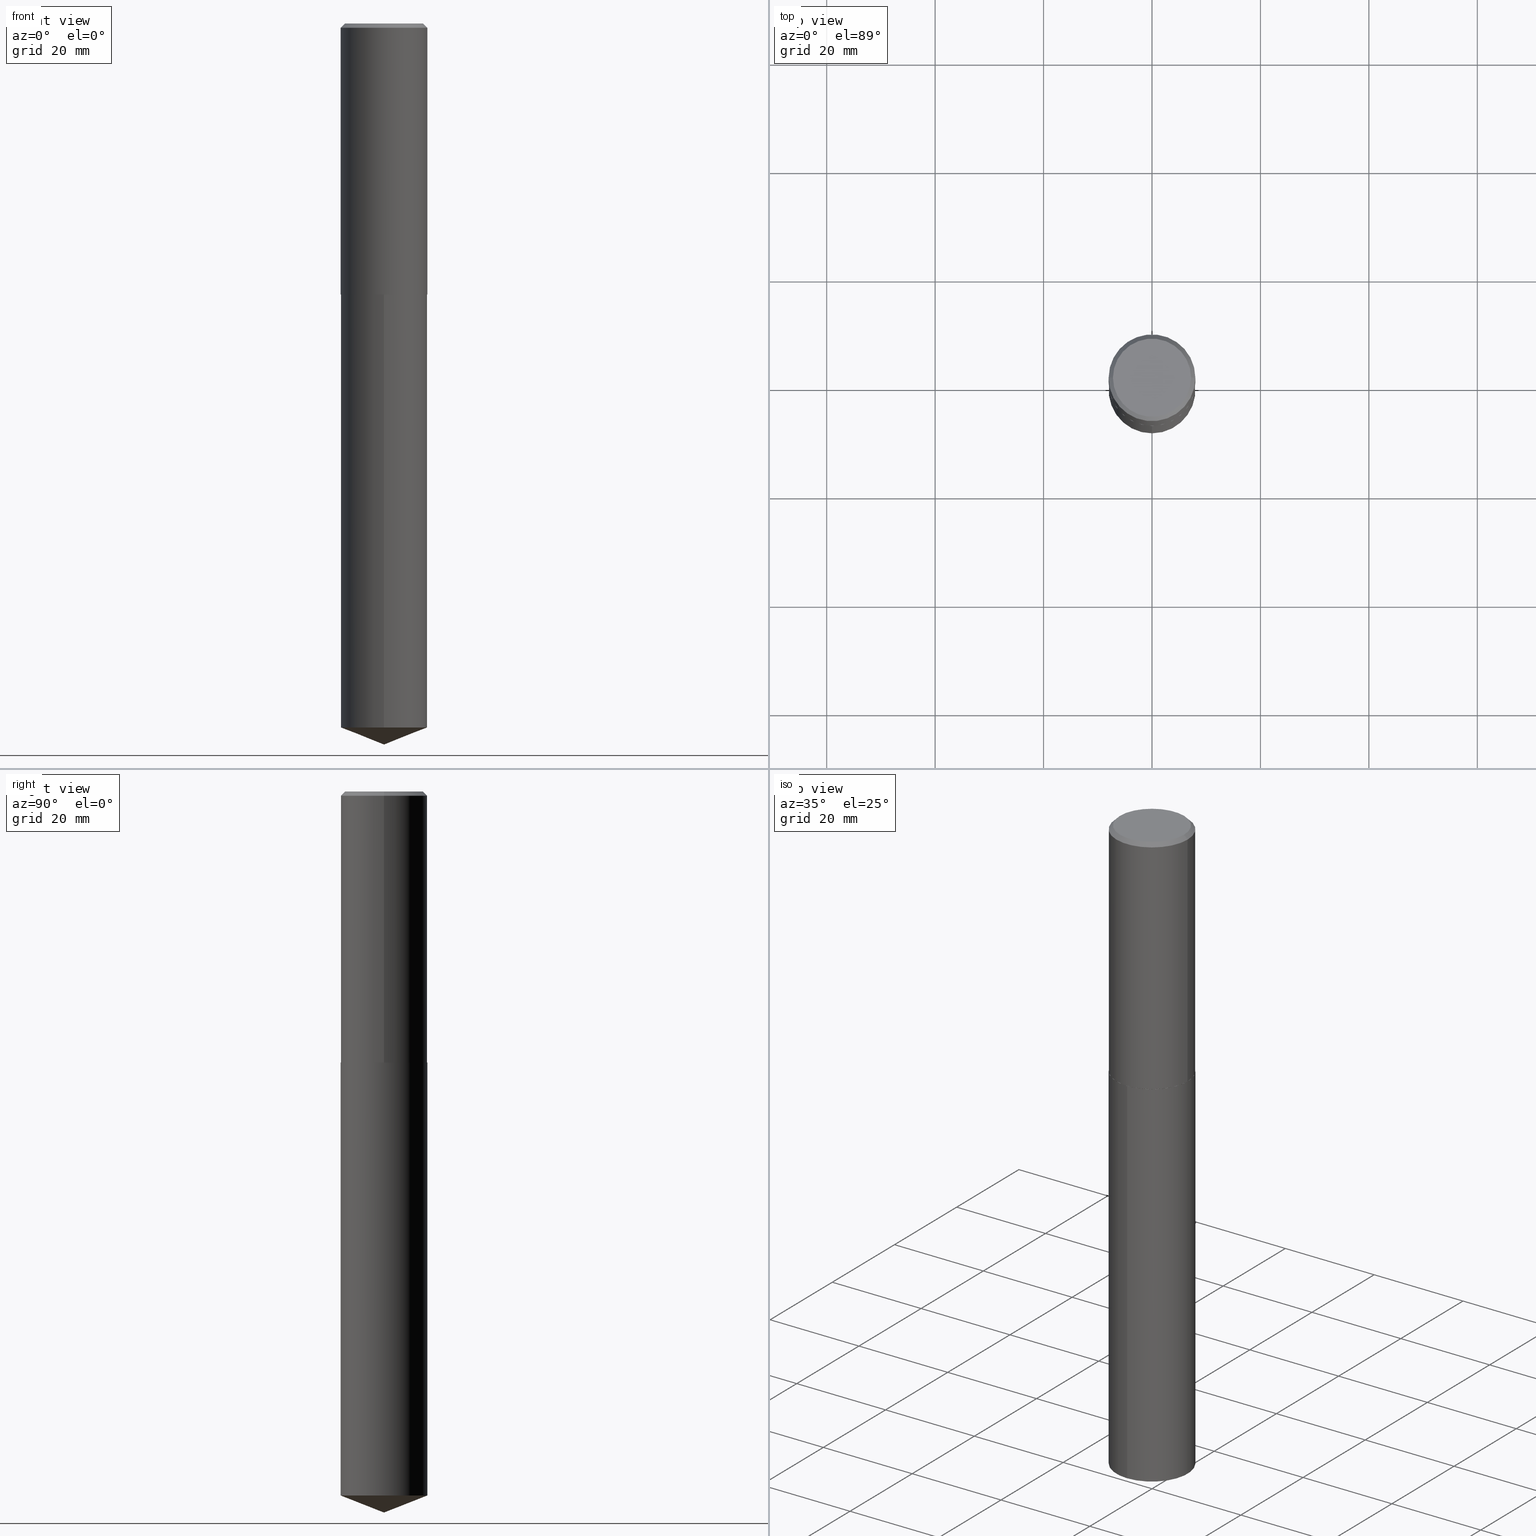
[diagram: canonical four-view strip — front | top / right | iso, engineering-drawing reading convention]
A machine part, canonical four-view strip (front | top / right | iso — engineering-drawing reading convention). The complete STEP part file that produces these views, byte-faithful:
ISO-10303-21;
HEADER;
FILE_DESCRIPTION (( 'STEP AP203' ),
    '1' );
FILE_NAME ('66605.STEP',
    '2024-04-23T12:51:02',
    ( '' ),
    ( '' ),
    'SwSTEP 2.0',
    'SolidWorks 2023',
    '' );
FILE_SCHEMA (( 'CONFIG_CONTROL_DESIGN' ));
ENDSEC;

DATA;
#1 = DIRECTION ( 'NONE',  ( -2.445468806185136597E-29, 3.491481338843145583E-15, 1.000000000000000000 ) ) ;
#2 =( CONVERSION_BASED_UNIT ( 'INCH', #55 ) LENGTH_UNIT ( ) NAMED_UNIT ( #104 ) );
#3 = ORIENTED_EDGE ( 'NONE', *, *, #247, .T. ) ;
#4 = CONICAL_SURFACE ( 'NONE', #216, 99.94676754583952061, 1.195550537616117959 ) ;
#5 = EDGE_CURVE ( 'NONE', #67, #201, #101, .T. ) ;
#6 = ORIENTED_EDGE ( 'NONE', *, *, #146, .F. ) ;
#7 = ADVANCED_FACE ( 'NONE', ( #156 ), #90, .F. ) ;
#8 = CARTESIAN_POINT ( 'NONE',  ( 3.619329321116390709E-29, -8.582283166352408660E-15, -1.968299999999999494 ) ) ;
#9 = CARTESIAN_POINT ( 'NONE',  ( 4.812193516811110904E-29, -6.870536978575539236E-15, -1.967799999999999327 ) ) ;
#10 = AXIS2_PLACEMENT_3D ( 'NONE', #294, #244, #154 ) ;
#11 = CONICAL_SURFACE ( 'NONE', #178, 0.3149500000000001743, 0.7853981633969019382 ) ;
#12 = CARTESIAN_POINT ( 'NONE',  ( 0.3144500000000002293, -9.068075333243411547E-15, -1.968299999999999939 ) ) ;
#13 = VECTOR ( 'NONE', #162, 39.37007874015748854 ) ;
#14 = DIRECTION ( 'NONE',  ( -2.445468806185136597E-29, 3.491481338843145583E-15, 1.000000000000000000 ) ) ;
#15 = LINE ( 'NONE', #310, #13 ) ;
#16 = DIRECTION ( 'NONE',  ( 1.000000000000000000, -6.982962677686269866E-15, 0.000000000000000000 ) ) ;
#17 = AXIS2_PLACEMENT_3D ( 'NONE', #8, #245, #39 ) ;
#18 = CARTESIAN_POINT ( 'NONE',  ( -5.892338936576605744E-47, 8.412698369802303245E-33, 2.409492577322419881E-18 ) ) ;
#19 = ORIENTED_EDGE ( 'NONE', *, *, #195, .T. ) ;
#20 = EDGE_CURVE ( 'NONE', #201, #67, #378, .T. ) ;
#21 = FACE_OUTER_BOUND ( 'NONE', #303, .T. ) ;
#22 = CALENDAR_DATE ( 2024, 23, 4 ) ;
#23 = CARTESIAN_POINT ( 'NONE',  ( 0.3149500000000000632, -2.308392887176139760E-15, -0.03125000000000023592 ) ) ;
#24 = CARTESIAN_POINT ( 'NONE',  ( 4.812193516811110904E-29, -6.870536978575539236E-15, -1.967799999999999327 ) ) ;
#25 = AXIS2_PLACEMENT_3D ( 'NONE', #192, #307, #45 ) ;
#26 = PRODUCT_DEFINITION_FORMATION_WITH_SPECIFIED_SOURCE ( 'ANY', '', #260, .NOT_KNOWN. ) ;
#27 = DATE_AND_TIME ( #299, #372 ) ;
#28 = VERTEX_POINT ( 'NONE', #367 ) ;
#29 = CARTESIAN_POINT ( 'NONE',  ( 0.000000000000000000, 0.000000000000000000, 0.000000000000000000 ) ) ;
#30 = CARTESIAN_POINT ( 'NONE',  ( 7.642090019328610544E-31, -1.091087918388491376E-16, -0.03125000000000023592 ) ) ;
#31 = APPLICATION_PROTOCOL_DEFINITION ( 'international standard', 'config_control_design', 1994, #91 ) ;
#32 = DIRECTION ( 'NONE',  ( -6.982962677686266711E-15, -1.000000000000000000, 3.498627837350020000E-15 ) ) ;
#33 = VECTOR ( 'NONE', #388, 39.37007874015748854 ) ;
#34 = ADVANCED_FACE ( 'NONE', ( #60 ), #11, .T. ) ;
#35 = DIRECTION ( 'NONE',  ( -2.445468806185136597E-29, 3.491481338843145583E-15, 1.000000000000000000 ) ) ;
#36 = CARTESIAN_POINT ( 'NONE',  ( -2.199284095337241356E-15, -0.3149500000000068911, -1.968299999999998162 ) ) ;
#37 = PRODUCT_DEFINITION ( 'UNKNOWN', '', #26, #338 ) ;
#38 = ADVANCED_BREP_SHAPE_REPRESENTATION ( '66605', ( #191, #179, #65 ), #110 ) ;
#39 = DIRECTION ( 'NONE',  ( 1.000000000000000000, -6.982962677686265922E-15, 4.876176775795935793E-29 ) ) ;
#40 = DIRECTION ( 'NONE',  ( -2.445468806185136597E-29, 3.491481338843145583E-15, 1.000000000000000000 ) ) ;
#41 = CC_DESIGN_PERSON_AND_ORGANIZATION_ASSIGNMENT ( #173, #387, ( #260 ) ) ;
#42 = DIRECTION ( 'NONE',  ( 2.445468806185136597E-29, -3.491481338843145583E-15, -1.000000000000000000 ) ) ;
#43 = VECTOR ( 'NONE', #148, 39.37007874015748143 ) ;
#44 = CC_DESIGN_APPROVAL ( #335, ( #37 ) ) ;
#45 = DIRECTION ( 'NONE',  ( 1.000000000000000000, -6.982962677686267499E-15, 4.876309930827607477E-29 ) ) ;
#46 = ORIENTED_EDGE ( 'NONE', *, *, #315, .F. ) ;
#47 = DIRECTION ( 'NONE',  ( -1.000000000000000000, 6.982962677686266711E-15, 0.000000000000000000 ) ) ;
#48 = EDGE_LOOP ( 'NONE', ( #147, #286, #204 ) ) ;
#49 = CARTESIAN_POINT ( 'NONE',  ( 0.3149500000000001743, -2.199284095337290660E-15, 1.535751875536930690E-29 ) ) ;
#50 = ORIENTED_EDGE ( 'NONE', *, *, #20, .F. ) ;
#51 = CIRCLE ( 'NONE', #297, 0.3149500000000001743 ) ;
#52 = FACE_OUTER_BOUND ( 'NONE', #109, .T. ) ;
#53 = CONICAL_SURFACE ( 'NONE', #208, 0.3149500000000000632, 0.7853981633974456145 ) ;
#54 = ORIENTED_EDGE ( 'NONE', *, *, #111, .T. ) ;
#55 = LENGTH_MEASURE_WITH_UNIT ( LENGTH_MEASURE( 0.02539999999999999897 ), #228 );
#56 = ORIENTED_EDGE ( 'NONE', *, *, #20, .T. ) ;
#57 = EDGE_LOOP ( 'NONE', ( #316, #46 ) ) ;
#58 = PERSON_AND_ORGANIZATION ( #306, #64 ) ;
#59 = CC_DESIGN_PERSON_AND_ORGANIZATION_ASSIGNMENT ( #149, #267, ( #26 ) ) ;
#60 = FACE_OUTER_BOUND ( 'NONE', #152, .T. ) ;
#61 = COORDINATED_UNIVERSAL_TIME_OFFSET ( 5, 0, .BEHIND. ) ;
#62 = VECTOR ( 'NONE', #332, 39.37007874015748854 ) ;
#63 = ORIENTED_EDGE ( 'NONE', *, *, #243, .T. ) ;
#64 = ORGANIZATION ( 'UNSPECIFIED', 'UNSPECIFIED', '' ) ;
#65 = AXIS2_PLACEMENT_3D ( 'NONE', #29, #261, #239 ) ;
#66 = APPROVAL_ROLE ( '' ) ;
#67 = VERTEX_POINT ( 'NONE', #23 ) ;
#68 = VERTEX_POINT ( 'NONE', #151 ) ;
#69 = DIRECTION ( 'NONE',  ( 2.444819801250085541E-29, -3.492410750849204966E-15, -1.000000000000000000 ) ) ;
#70 = EDGE_CURVE ( 'NONE', #232, #67, #129, .T. ) ;
#71 = FACE_OUTER_BOUND ( 'NONE', #57, .T. ) ;
#72 = AXIS2_PLACEMENT_3D ( 'NONE', #135, #251, #77 ) ;
#73 = LINE ( 'NONE', #36, #289 ) ;
#74 = EDGE_CURVE ( 'NONE', #172, #382, #276, .T. ) ;
#75 = CARTESIAN_POINT ( 'NONE',  ( 1.280365375539167824E-28, -1.828260396814338292E-14, -5.235999999999999766 ) ) ;
#76 = CIRCLE ( 'NONE', #150, 0.3144500000000002293 ) ;
#77 = DIRECTION ( 'NONE',  ( -6.982962677686265922E-15, -1.000000000000000000, 3.469564049740292770E-15 ) ) ;
#78 = PRODUCT_RELATED_PRODUCT_CATEGORY ( 'detail', '', ( #260 ) ) ;
#79 = DIRECTION ( 'NONE',  ( -6.982962677686265922E-15, -1.000000000000000000, 3.469564049740292770E-15 ) ) ;
#80 = DIRECTION ( 'NONE',  ( -2.445468806185136597E-29, 3.491481338843145583E-15, 1.000000000000000000 ) ) ;
#81 = ORIENTED_EDGE ( 'NONE', *, *, #390, .T. ) ;
#82 = CONICAL_SURFACE ( 'NONE', #198, 0.3149500000000001743, 0.7853981633969019382 ) ;
#83 = CIRCLE ( 'NONE', #298, 0.3149500000000000077 ) ;
#84 = CARTESIAN_POINT ( 'NONE',  ( 4.813416251214202584E-29, -6.872282719244960739E-15, -1.968299999999999272 ) ) ;
#85 = LINE ( 'NONE', #49, #225 ) ;
#86 = ADVANCED_FACE ( 'NONE', ( #322 ), #174, .T. ) ;
#87 = EDGE_LOOP ( 'NONE', ( #354, #256, #81, #50 ) ) ;
#88 = PERSON_AND_ORGANIZATION ( #306, #64 ) ;
#89 = COORDINATED_UNIVERSAL_TIME_OFFSET ( 5, 0, .BEHIND. ) ;
#90 = PLANE ( 'NONE',  #270 ) ;
#91 = APPLICATION_CONTEXT ( 'configuration controlled 3d designs of mechanical parts and assemblies' ) ;
#92 = APPROVAL_DATE_TIME ( #155, #275 ) ;
#93 = CARTESIAN_POINT ( 'NONE',  ( -2.199284095337164048E-15, -0.3149500000000177713, -5.111937895705072954 ) ) ;
#94 = CLOSED_SHELL ( 'NONE', ( #86, #269, #131, #375, #7 ) ) ;
#95 = CARTESIAN_POINT ( 'NONE',  ( -8.345039416495294866E-28, 1.192120529241108051E-13, 34.13407874015748433 ) ) ;
#96 = VECTOR ( 'NONE', #226, 39.37007874015748854 ) ;
#97 = EDGE_LOOP ( 'NONE', ( #175, #19 ) ) ;
#98 = DATE_TIME_ROLE ( 'creation_date' ) ;
#99 = LINE ( 'NONE', #125, #43 ) ;
#100 = LINE ( 'NONE', #75, #241 ) ;
#101 = CIRCLE ( 'NONE', #371, 0.3149500000000000632 ) ;
#102 = CIRCLE ( 'NONE', #170, 0.3144500000000002293 ) ;
#103 = EDGE_CURVE ( 'NONE', #141, #350, #99, .T. ) ;
#104 = DIMENSIONAL_EXPONENTS ( 1.000000000000000000, 0.000000000000000000, 0.000000000000000000, 0.000000000000000000, 0.000000000000000000, 0.000000000000000000, 0.000000000000000000 ) ;
#105 = CARTESIAN_POINT ( 'NONE',  ( 7.642090019328610544E-31, -1.091087918388491376E-16, -0.03125000000000023592 ) ) ;
#106 = DIRECTION ( 'NONE',  ( 1.000000000000000000, -6.982962677686267499E-15, 4.876309930827607477E-29 ) ) ;
#107 = ORIENTED_EDGE ( 'NONE', *, *, #121, .F. ) ;
#108 = FACE_OUTER_BOUND ( 'NONE', #235, .T. ) ;
#109 = EDGE_LOOP ( 'NONE', ( #113, #54, #197, #220 ) ) ;
#110 =( GEOMETRIC_REPRESENTATION_CONTEXT ( 3 ) GLOBAL_UNCERTAINTY_ASSIGNED_CONTEXT ( ( #249 ) ) GLOBAL_UNIT_ASSIGNED_CONTEXT ( ( #2, #124, #180 ) ) REPRESENTATION_CONTEXT ( 'NONE', 'WORKASPACE' ) );
#111 = EDGE_CURVE ( 'NONE', #382, #201, #238, .T. ) ;
#112 = CARTESIAN_POINT ( 'NONE',  ( 1.280107647934544831E-28, -1.828626269144643580E-14, -5.235999999999999766 ) ) ;
#113 = ORIENTED_EDGE ( 'NONE', *, *, #74, .T. ) ;
#114 = ORIENTED_EDGE ( 'NONE', *, *, #368, .T. ) ;
#115 = VERTEX_POINT ( 'NONE', #93 ) ;
#116 = COORDINATED_UNIVERSAL_TIME_OFFSET ( 5, 0, .BEHIND. ) ;
#117 = CIRCLE ( 'NONE', #364, 0.3149500000000000077 ) ;
#118 = PERSON_AND_ORGANIZATION_ROLE ( 'creator' ) ;
#119 = CC_DESIGN_APPROVAL ( #275, ( #26 ) ) ;
#120 = EDGE_LOOP ( 'NONE', ( #139, #302, #157, #56 ) ) ;
#121 = EDGE_CURVE ( 'NONE', #227, #172, #331, .T. ) ;
#122 = CALENDAR_DATE ( 2024, 23, 4 ) ;
#123 = DIRECTION ( 'NONE',  ( 1.000000000000000000, -6.982962677686265922E-15, 0.000000000000000000 ) ) ;
#124 =( NAMED_UNIT ( * ) PLANE_ANGLE_UNIT ( ) SI_UNIT ( $, .RADIAN. ) );
#125 = CARTESIAN_POINT ( 'NONE',  ( 2.237854346276483316E-15, 0.3149499999999931243, -1.968300000000000383 ) ) ;
#126 = PERSON_AND_ORGANIZATION ( #306, #64 ) ;
#127 = ORIENTED_EDGE ( 'NONE', *, *, #355, .T. ) ;
#128 = APPROVAL_PERSON_ORGANIZATION ( #231, #275, #295 ) ;
#129 = LINE ( 'NONE', #240, #33 ) ;
#130 = CARTESIAN_POINT ( 'NONE',  ( 2.237854346276560230E-15, 0.3149499999999821886, -5.111937895705075618 ) ) ;
#131 = ADVANCED_FACE ( 'NONE', ( #186 ), #224, .T. ) ;
#132 = APPLICATION_CONTEXT ( 'configuration controlled 3d designs of mechanical parts and assemblies' ) ;
#133 = APPROVAL_PERSON_ORGANIZATION ( #88, #218, #358 ) ;
#134 = CARTESIAN_POINT ( 'NONE',  ( -0.3149500000000000632, -1.251968538930757395E-15, -0.03125000000000023592 ) ) ;
#135 = CARTESIAN_POINT ( 'NONE',  ( 1.249904442659412595E-28, -1.785115750298233678E-14, -5.111937895705073842 ) ) ;
#136 = CARTESIAN_POINT ( 'NONE',  ( 0.2837000000000000077, -2.108072959102388916E-15, 4.818985154659137865E-18 ) ) ;
#137 = AXIS2_PLACEMENT_3D ( 'NONE', #257, #165, #219 ) ;
#138 = DIRECTION ( 'NONE',  ( -2.445468806185136597E-29, 3.491481338843145583E-15, 1.000000000000000000 ) ) ;
#139 = ORIENTED_EDGE ( 'NONE', *, *, #70, .F. ) ;
#140 = CARTESIAN_POINT ( 'NONE',  ( -8.345039416495294866E-28, 1.192120529241108051E-13, 34.13407874015748433 ) ) ;
#141 = VERTEX_POINT ( 'NONE', #130 ) ;
#142 = CARTESIAN_POINT ( 'NONE',  ( 7.642090019328610544E-31, -1.091087918388491376E-16, -0.03125000000000023592 ) ) ;
#143 = AXIS2_PLACEMENT_3D ( 'NONE', #177, #296, #242 ) ;
#144 = DIRECTION ( 'NONE',  ( -1.000000000000000000, 6.982962677686266711E-15, 0.000000000000000000 ) ) ;
#145 = DIRECTION ( 'NONE',  ( -2.445468806185136597E-29, 3.491481338843145583E-15, 1.000000000000000000 ) ) ;
#146 = EDGE_CURVE ( 'NONE', #300, #201, #212, .T. ) ;
#147 = ORIENTED_EDGE ( 'NONE', *, *, #243, .F. ) ;
#148 = DIRECTION ( 'NONE',  ( -2.444819801250085822E-29, 3.492410750849204966E-15, 1.000000000000000000 ) ) ;
#149 = PERSON_AND_ORGANIZATION ( #306, #64 ) ;
#150 = AXIS2_PLACEMENT_3D ( 'NONE', #217, #14, #16 ) ;
#151 = CARTESIAN_POINT ( 'NONE',  ( -2.199284095337241356E-15, -0.3149500000000068911, -1.968299999999998162 ) ) ;
#152 = EDGE_LOOP ( 'NONE', ( #114, #127, #166, #107 ) ) ;
#153 = APPROVAL_DATE_TIME ( #27, #218 ) ;
#154 = DIRECTION ( 'NONE',  ( -6.982962677686265922E-15, -1.000000000000000000, 3.469564049740292770E-15 ) ) ;
#155 = DATE_AND_TIME ( #203, #357 ) ;
#156 = FACE_OUTER_BOUND ( 'NONE', #97, .T. ) ;
#157 = ORIENTED_EDGE ( 'NONE', *, *, #146, .T. ) ;
#158 = LOCAL_TIME ( 8, 51, 2.000000000000000000, #263 ) ;
#159 = PLANE ( 'NONE',  #17 ) ;
#160 = CARTESIAN_POINT ( 'NONE',  ( -0.3149500000000000632, 2.090175303498441165E-15, -0.03125000000000023592 ) ) ;
#161 = CC_DESIGN_APPROVAL ( #218, ( #328 ) ) ;
#162 = DIRECTION ( 'NONE',  ( -0.7071067811861611041, 7.493145998868957876E-15, 0.7071067811869338193 ) ) ;
#163 = DIRECTION ( 'NONE',  ( -2.444819801250086102E-29, 3.492410750849204966E-15, 1.000000000000000000 ) ) ;
#164 = ORIENTED_EDGE ( 'NONE', *, *, #250, .F. ) ;
#165 = DIRECTION ( 'NONE',  ( -2.444819801250086102E-29, 3.492410750849204966E-15, 1.000000000000000000 ) ) ;
#166 = ORIENTED_EDGE ( 'NONE', *, *, #74, .F. ) ;
#167 = DIRECTION ( 'NONE',  ( 2.445468806185136597E-29, -3.491481338843145583E-15, -1.000000000000000000 ) ) ;
#168 = ORIENTED_EDGE ( 'NONE', *, *, #5, .T. ) ;
#169 = VECTOR ( 'NONE', #182, 39.37007874015748854 ) ;
#170 = AXIS2_PLACEMENT_3D ( 'NONE', #343, #80, #281 ) ;
#171 = DIRECTION ( 'NONE',  ( 1.000000000000000000, -6.982962677686265922E-15, 4.876176775795935232E-29 ) ) ;
#172 = VERTEX_POINT ( 'NONE', #279 ) ;
#173 = PERSON_AND_ORGANIZATION ( #306, #64 ) ;
#174 = CYLINDRICAL_SURFACE ( 'NONE', #10, 0.3149500000000000077 ) ;
#175 = ORIENTED_EDGE ( 'NONE', *, *, #333, .T. ) ;
#176 = APPROVAL_STATUS ( 'not_yet_approved' ) ;
#177 = CARTESIAN_POINT ( 'NONE',  ( 7.642090019328610544E-31, -1.091087918388491376E-16, -0.03125000000000023592 ) ) ;
#178 = AXIS2_PLACEMENT_3D ( 'NONE', #24, #366, #327 ) ;
#179 = MANIFOLD_SOLID_BREP ( 'Body-Move/Copy2[2]', #282 ) ;
#180 =( NAMED_UNIT ( * ) SI_UNIT ( $, .STERADIAN. ) SOLID_ANGLE_UNIT ( ) );
#181 = ADVANCED_FACE ( 'NONE', ( #215 ), #214, .T. ) ;
#182 = DIRECTION ( 'NONE',  ( 0.7071067811861611041, -2.468850131078209810E-15, 0.7071067811869338193 ) ) ;
#183 = APPLICATION_PROTOCOL_DEFINITION ( 'international standard', 'config_control_design', 1994, #132 ) ;
#184 = ORIENTED_EDGE ( 'NONE', *, *, #247, .F. ) ;
#185 = DATE_TIME_ROLE ( 'classification_date' ) ;
#186 = FACE_OUTER_BOUND ( 'NONE', #48, .T. ) ;
#187 = EDGE_CURVE ( 'NONE', #141, #115, #233, .T. ) ;
#188 = VECTOR ( 'NONE', #363, 39.37007874015748143 ) ;
#189 = DIRECTION ( 'NONE',  ( -6.982962677686265922E-15, -1.000000000000000000, 3.469564049740292770E-15 ) ) ;
#190 = LOCAL_TIME ( 8, 51, 2.000000000000000000, #361 ) ;
#191 = MANIFOLD_SOLID_BREP ( 'Body-Move/Copy2[1]', #94 ) ;
#192 = CARTESIAN_POINT ( 'NONE',  ( -1.178467787315321149E-46, 1.682539673960460649E-32, 4.818985154644839761E-18 ) ) ;
#193 = LOCAL_TIME ( 8, 51, 2.000000000000000000, #116 ) ;
#194 = CARTESIAN_POINT ( 'NONE',  ( -0.2837000000000000077, 2.035620907579017403E-15, 4.818985154630794339E-18 ) ) ;
#195 = EDGE_CURVE ( 'NONE', #350, #68, #117, .T. ) ;
#196 = CARTESIAN_POINT ( 'NONE',  ( 4.813416251214202584E-29, -6.872282719244960739E-15, -1.968299999999999272 ) ) ;
#197 = ORIENTED_EDGE ( 'NONE', *, *, #5, .F. ) ;
#198 = AXIS2_PLACEMENT_3D ( 'NONE', #9, #40, #304 ) ;
#199 = CARTESIAN_POINT ( 'NONE',  ( 2.237854346276560625E-15, 0.3149499999999931243, -1.968300000000000383 ) ) ;
#200 = ORIENTED_EDGE ( 'NONE', *, *, #355, .F. ) ;
#201 = VERTEX_POINT ( 'NONE', #134 ) ;
#202 = ORIENTED_EDGE ( 'NONE', *, *, #344, .F. ) ;
#203 = CALENDAR_DATE ( 2024, 23, 4 ) ;
#204 = ORIENTED_EDGE ( 'NONE', *, *, #187, .F. ) ;
#205 = ADVANCED_FACE ( 'NONE', ( #308 ), #82, .T. ) ;
#206 = PERSON_AND_ORGANIZATION_ROLE ( 'classification_officer' ) ;
#207 = CARTESIAN_POINT ( 'NONE',  ( 0.3149500000000001743, -9.069821073912830684E-15, -1.967799999999999327 ) ) ;
#208 = AXIS2_PLACEMENT_3D ( 'NONE', #105, #167, #47 ) ;
#209 = DIRECTION ( 'NONE',  ( 6.982962677686265922E-15, 1.000000000000000000, -3.492410750849204966E-15 ) ) ;
#210 = SECURITY_CLASSIFICATION_LEVEL ( 'unclassified' ) ;
#211 = CARTESIAN_POINT ( 'NONE',  ( -0.3149500000000001743, 2.237854346276436774E-15, -1.549218606675783237E-29 ) ) ;
#212 = LINE ( 'NONE', #160, #62 ) ;
#213 = AXIS2_PLACEMENT_3D ( 'NONE', #264, #268, #123 ) ;
#214 = CYLINDRICAL_SURFACE ( 'NONE', #369, 0.3149500000000001743 ) ;
#215 = FACE_OUTER_BOUND ( 'NONE', #87, .T. ) ;
#216 = AXIS2_PLACEMENT_3D ( 'NONE', #140, #163, #353 ) ;
#217 = CARTESIAN_POINT ( 'NONE',  ( 4.813416251214204266E-29, -6.872282719244963106E-15, -1.968299999999999939 ) ) ;
#218 = APPROVAL ( #324, 'UNSPECIFIED' ) ;
#219 = DIRECTION ( 'NONE',  ( -6.982962677686265922E-15, -1.000000000000000000, 3.469564049740292770E-15 ) ) ;
#220 = ORIENTED_EDGE ( 'NONE', *, *, #390, .F. ) ;
#221 = ORIENTED_EDGE ( 'NONE', *, *, #315, .T. ) ;
#222 = DIRECTION ( 'NONE',  ( 1.000000000000000000, -6.982962677686265922E-15, 0.000000000000000000 ) ) ;
#223 = ORIENTED_EDGE ( 'NONE', *, *, #383, .F. ) ;
#224 = CONICAL_SURFACE ( 'NONE', #312, 99.94676754583952061, 1.195550537616117959 ) ;
#225 = VECTOR ( 'NONE', #381, 39.37007874015748143 ) ;
#226 = DIRECTION ( 'NONE',  ( -6.497071151882115892E-15, -0.9304175679820240186, 0.3665012267242985233 ) ) ;
#227 = VERTEX_POINT ( 'NONE', #12 ) ;
#228 =( LENGTH_UNIT ( ) NAMED_UNIT ( * ) SI_UNIT ( $, .METRE. ) );
#229 = ORIENTED_EDGE ( 'NONE', *, *, #333, .F. ) ;
#230 = PRODUCT_DEFINITION_SHAPE ( 'NONE', 'NONE',  #37 ) ;
#231 = PERSON_AND_ORGANIZATION ( #306, #64 ) ;
#232 = VERTEX_POINT ( 'NONE', #136 ) ;
#233 = CIRCLE ( 'NONE', #72, 0.3149500000000000077 ) ;
#234 = DATE_AND_TIME ( #326, #190 ) ;
#235 = EDGE_LOOP ( 'NONE', ( #323, #319, #3, #352 ) ) ;
#236 = ADVANCED_FACE ( 'NONE', ( #71 ), #159, .F. ) ;
#237 = APPROVAL_STATUS ( 'not_yet_approved' ) ;
#238 = LINE ( 'NONE', #211, #188 ) ;
#239 = DIRECTION ( 'NONE',  ( 1.000000000000000000, 0.000000000000000000, 0.000000000000000000 ) ) ;
#240 = CARTESIAN_POINT ( 'NONE',  ( 0.3149500000000000632, -2.269822636236993647E-15, -0.03125000000000023592 ) ) ;
#241 = VECTOR ( 'NONE', #336, 39.37007874015748854 ) ;
#242 = DIRECTION ( 'NONE',  ( 1.000000000000000000, -6.982962677686266711E-15, 0.000000000000000000 ) ) ;
#243 = EDGE_CURVE ( 'NONE', #386, #141, #100, .T. ) ;
#244 = DIRECTION ( 'NONE',  ( -2.444819801250086102E-29, 3.492410750849204966E-15, 1.000000000000000000 ) ) ;
#245 = DIRECTION ( 'NONE',  ( -2.438088387897960049E-29, 3.491481338843145188E-15, 1.000000000000000000 ) ) ;
#246 = AXIS2_PLACEMENT_3D ( 'NONE', #284, #145, #171 ) ;
#247 = EDGE_CURVE ( 'NONE', #115, #68, #73, .T. ) ;
#248 = DIRECTION ( 'NONE',  ( -2.444819801250085822E-29, 3.492410750849204966E-15, 1.000000000000000000 ) ) ;
#249 = UNCERTAINTY_MEASURE_WITH_UNIT (LENGTH_MEASURE( 1.000000000000000082E-05 ), #2, 'distance_accuracy_value', 'NONE');
#250 = EDGE_CURVE ( 'NONE', #232, #300, #334, .T. ) ;
#251 = DIRECTION ( 'NONE',  ( -2.444819801250086102E-29, 3.492410750849204966E-15, 1.000000000000000000 ) ) ;
#252 = DIRECTION ( 'NONE',  ( -2.445468806185136597E-29, 3.491481338843145583E-15, 1.000000000000000000 ) ) ;
#253 = ADVANCED_FACE ( 'NONE', ( #342 ), #318, .F. ) ;
#254 = CYLINDRICAL_SURFACE ( 'NONE', #246, 0.3149500000000001743 ) ;
#255 = CARTESIAN_POINT ( 'NONE',  ( -0.3149500000000001743, -4.632682632299103251E-15, -1.967799999999999327 ) ) ;
#256 = ORIENTED_EDGE ( 'NONE', *, *, #274, .T. ) ;
#257 = CARTESIAN_POINT ( 'NONE',  ( 1.249904442659412595E-28, -1.785115750298233678E-14, -5.111937895705073842 ) ) ;
#258 = ORIENTED_EDGE ( 'NONE', *, *, #250, .T. ) ;
#259 = EDGE_LOOP ( 'NONE', ( #360, #258 ) ) ;
#260 = PRODUCT ( '66605', '66605', '', ( #265 ) ) ;
#261 = DIRECTION ( 'NONE',  ( 0.000000000000000000, 0.000000000000000000, 1.000000000000000000 ) ) ;
#262 = EDGE_LOOP ( 'NONE', ( #200, #221, #348, #266 ) ) ;
#263 = COORDINATED_UNIVERSAL_TIME_OFFSET ( 5, 0, .BEHIND. ) ;
#264 = CARTESIAN_POINT ( 'NONE',  ( 4.812193516811110904E-29, -6.870536978575539236E-15, -1.967799999999999327 ) ) ;
#265 = MECHANICAL_CONTEXT ( 'NONE', #91, 'mechanical' ) ;
#266 = ORIENTED_EDGE ( 'NONE', *, *, #274, .F. ) ;
#267 = PERSON_AND_ORGANIZATION_ROLE ( 'design_supplier' ) ;
#268 = DIRECTION ( 'NONE',  ( -2.445468806185136597E-29, 3.491481338843145583E-15, 1.000000000000000000 ) ) ;
#269 = ADVANCED_FACE ( 'NONE', ( #21 ), #4, .T. ) ;
#270 = AXIS2_PLACEMENT_3D ( 'NONE', #325, #69, #209 ) ;
#271 = AXIS2_PLACEMENT_3D ( 'NONE', #376, #138, #106 ) ;
#272 = EDGE_LOOP ( 'NONE', ( #380, #291, #229, #184 ) ) ;
#273 = CARTESIAN_POINT ( 'NONE',  ( 0.000000000000000000, 0.000000000000000000, 0.000000000000000000 ) ) ;
#274 = EDGE_CURVE ( 'NONE', #382, #172, #51, .T. ) ;
#275 = APPROVAL ( #176, 'UNSPECIFIED' ) ;
#276 = CIRCLE ( 'NONE', #213, 0.3149500000000001743 ) ;
#277 = CONICAL_SURFACE ( 'NONE', #283, 0.3149500000000000632, 0.7853981633974456145 ) ;
#278 = CARTESIAN_POINT ( 'NONE',  ( 4.813416251214202584E-29, -6.872282719244960739E-15, -1.968299999999999272 ) ) ;
#279 = CARTESIAN_POINT ( 'NONE',  ( 0.3149500000000001743, -9.069821073912830684E-15, -1.967799999999999327 ) ) ;
#280 = ADVANCED_FACE ( 'NONE', ( #52 ), #254, .T. ) ;
#281 = DIRECTION ( 'NONE',  ( 1.000000000000000000, -6.982962677686269866E-15, 0.000000000000000000 ) ) ;
#282 = CLOSED_SHELL ( 'NONE', ( #313, #280, #34, #236, #205, #181, #309, #253 ) ) ;
#283 = AXIS2_PLACEMENT_3D ( 'NONE', #142, #42, #144 ) ;
#284 = CARTESIAN_POINT ( 'NONE',  ( 0.000000000000000000, 0.000000000000000000, 0.000000000000000000 ) ) ;
#285 = DIRECTION ( 'NONE',  ( -2.444819801250086102E-29, 3.492410750849204966E-15, 1.000000000000000000 ) ) ;
#286 = ORIENTED_EDGE ( 'NONE', *, *, #383, .T. ) ;
#287 = CC_DESIGN_DATE_AND_TIME_ASSIGNMENT ( #234, #185, ( #328 ) ) ;
#288 = DIRECTION ( 'NONE',  ( 2.438088387897960049E-29, -3.491481338843145188E-15, -1.000000000000000000 ) ) ;
#289 = VECTOR ( 'NONE', #248, 39.37007874015748143 ) ;
#290 = FACE_OUTER_BOUND ( 'NONE', #377, .T. ) ;
#291 = ORIENTED_EDGE ( 'NONE', *, *, #103, .T. ) ;
#292 = DATE_AND_TIME ( #22, #158 ) ;
#293 = CC_DESIGN_PERSON_AND_ORGANIZATION_ASSIGNMENT ( #356, #118, ( #26 ) ) ;
#294 = CARTESIAN_POINT ( 'NONE',  ( 4.813416251214202584E-29, -6.872282719244960739E-15, -1.968299999999999272 ) ) ;
#295 = APPROVAL_ROLE ( '' ) ;
#296 = DIRECTION ( 'NONE',  ( -2.445468806185136597E-29, 3.491481338843145583E-15, 1.000000000000000000 ) ) ;
#297 = AXIS2_PLACEMENT_3D ( 'NONE', #373, #252, #222 ) ;
#298 = AXIS2_PLACEMENT_3D ( 'NONE', #196, #374, #79 ) ;
#299 = CALENDAR_DATE ( 2024, 23, 4 ) ;
#300 = VERTEX_POINT ( 'NONE', #194 ) ;
#301 = DATE_AND_TIME ( #122, #193 ) ;
#302 = ORIENTED_EDGE ( 'NONE', *, *, #305, .F. ) ;
#303 = EDGE_LOOP ( 'NONE', ( #223, #63, #202 ) ) ;
#304 = DIRECTION ( 'NONE',  ( 1.000000000000000000, -6.982962677686265922E-15, 0.000000000000000000 ) ) ;
#305 = EDGE_CURVE ( 'NONE', #300, #232, #347, .T. ) ;
#306 = PERSON ( 'UNSPECIFIED', 'UNSPECIFIED', 'UNSPECIFIED', ('UNSPECIFIED'), ('UNSPECIFIED'), ('UNSPECIFIED') ) ;
#307 = DIRECTION ( 'NONE',  ( -2.445468806185136597E-29, 3.491481338843145583E-15, 1.000000000000000000 ) ) ;
#308 = FACE_OUTER_BOUND ( 'NONE', #262, .T. ) ;
#309 = ADVANCED_FACE ( 'NONE', ( #311 ), #277, .T. ) ;
#310 = CARTESIAN_POINT ( 'NONE',  ( -0.3149500000000001743, -4.632682632299103251E-15, -1.967799999999999327 ) ) ;
#311 = FACE_OUTER_BOUND ( 'NONE', #120, .T. ) ;
#312 = AXIS2_PLACEMENT_3D ( 'NONE', #95, #330, #32 ) ;
#313 = ADVANCED_FACE ( 'NONE', ( #290 ), #53, .T. ) ;
#314 = DIRECTION ( 'NONE',  ( -6.982962677686265922E-15, -1.000000000000000000, 3.469564049740292770E-15 ) ) ;
#315 = EDGE_CURVE ( 'NONE', #28, #227, #76, .T. ) ;
#316 = ORIENTED_EDGE ( 'NONE', *, *, #368, .F. ) ;
#317 = DIRECTION ( 'NONE',  ( -1.000000000000000000, 6.982962677686265922E-15, -4.876176775795935793E-29 ) ) ;
#318 = PLANE ( 'NONE',  #339 ) ;
#319 = ORIENTED_EDGE ( 'NONE', *, *, #187, .T. ) ;
#320 = APPROVAL_PERSON_ORGANIZATION ( #329, #335, #66 ) ;
#321 = CC_DESIGN_PERSON_AND_ORGANIZATION_ASSIGNMENT ( #58, #384, ( #37 ) ) ;
#322 = FACE_OUTER_BOUND ( 'NONE', #272, .T. ) ;
#323 = ORIENTED_EDGE ( 'NONE', *, *, #103, .F. ) ;
#324 = APPROVAL_STATUS ( 'not_yet_approved' ) ;
#325 = CARTESIAN_POINT ( 'NONE',  ( 4.813416251214202584E-29, -6.872282719244960739E-15, -1.968299999999999272 ) ) ;
#326 = CALENDAR_DATE ( 2024, 23, 4 ) ;
#327 = DIRECTION ( 'NONE',  ( 1.000000000000000000, -6.982962677686265922E-15, 0.000000000000000000 ) ) ;
#328 = SECURITY_CLASSIFICATION ( '', '', #210 ) ;
#329 = PERSON_AND_ORGANIZATION ( #306, #64 ) ;
#330 = DIRECTION ( 'NONE',  ( -2.444819801250086102E-29, 3.492410750849204966E-15, 1.000000000000000000 ) ) ;
#331 = LINE ( 'NONE', #207, #169 ) ;
#332 = DIRECTION ( 'NONE',  ( -0.7071067811865455743, 2.468850131082236945E-15, -0.7071067811865493491 ) ) ;
#333 = EDGE_CURVE ( 'NONE', #68, #350, #83, .T. ) ;
#334 = CIRCLE ( 'NONE', #25, 0.2837000000000000077 ) ;
#335 = APPROVAL ( #237, 'UNSPECIFIED' ) ;
#336 = DIRECTION ( 'NONE',  ( 6.611014441532061856E-15, 0.9304175679820264611, 0.3665012267242919175 ) ) ;
#337 = DIRECTION ( 'NONE',  ( -2.444819801250086102E-29, 3.492410750849204966E-15, 1.000000000000000000 ) ) ;
#338 = DESIGN_CONTEXT ( 'detailed design', #132, 'design' ) ;
#339 = AXIS2_PLACEMENT_3D ( 'NONE', #18, #288, #317 ) ;
#340 = CC_DESIGN_SECURITY_CLASSIFICATION ( #328, ( #26 ) ) ;
#341 = DIRECTION ( 'NONE',  ( 1.000000000000000000, -6.982962677686265922E-15, 4.876176775795935232E-29 ) ) ;
#342 = FACE_OUTER_BOUND ( 'NONE', #259, .T. ) ;
#343 = CARTESIAN_POINT ( 'NONE',  ( 4.813416251214204266E-29, -6.872282719244963106E-15, -1.968299999999999939 ) ) ;
#344 = EDGE_CURVE ( 'NONE', #115, #141, #349, .T. ) ;
#345 = CC_DESIGN_DATE_AND_TIME_ASSIGNMENT ( #301, #98, ( #37 ) ) ;
#346 = CYLINDRICAL_SURFACE ( 'NONE', #370, 0.3149500000000000077 ) ;
#347 = CIRCLE ( 'NONE', #271, 0.2837000000000000077 ) ;
#348 = ORIENTED_EDGE ( 'NONE', *, *, #121, .T. ) ;
#349 = CIRCLE ( 'NONE', #137, 0.3149500000000000077 ) ;
#350 = VERTEX_POINT ( 'NONE', #199 ) ;
#351 = CARTESIAN_POINT ( 'NONE',  ( 1.280107647934544831E-28, -1.828626269144643580E-14, -5.235999999999999766 ) ) ;
#352 = ORIENTED_EDGE ( 'NONE', *, *, #195, .F. ) ;
#353 = DIRECTION ( 'NONE',  ( -6.982962677686266711E-15, -1.000000000000000000, 3.498627837350020000E-15 ) ) ;
#354 = ORIENTED_EDGE ( 'NONE', *, *, #111, .F. ) ;
#355 = EDGE_CURVE ( 'NONE', #28, #382, #15, .T. ) ;
#356 = PERSON_AND_ORGANIZATION ( #306, #64 ) ;
#357 = LOCAL_TIME ( 8, 51, 2.000000000000000000, #89 ) ;
#358 = APPROVAL_ROLE ( '' ) ;
#359 = DIRECTION ( 'NONE',  ( 1.000000000000000000, -6.982962677686266711E-15, 0.000000000000000000 ) ) ;
#360 = ORIENTED_EDGE ( 'NONE', *, *, #305, .T. ) ;
#361 = COORDINATED_UNIVERSAL_TIME_OFFSET ( 5, 0, .BEHIND. ) ;
#362 = CC_DESIGN_PERSON_AND_ORGANIZATION_ASSIGNMENT ( #126, #206, ( #328 ) ) ;
#363 = DIRECTION ( 'NONE',  ( -2.445468806185136877E-29, 3.491481338843145188E-15, 1.000000000000000000 ) ) ;
#364 = AXIS2_PLACEMENT_3D ( 'NONE', #278, #337, #189 ) ;
#365 = SHAPE_DEFINITION_REPRESENTATION ( #230, #38 ) ;
#366 = DIRECTION ( 'NONE',  ( -2.445468806185136597E-29, 3.491481338843145583E-15, 1.000000000000000000 ) ) ;
#367 = CARTESIAN_POINT ( 'NONE',  ( -0.3144500000000002293, -4.635331859473215241E-15, -1.968299999999999939 ) ) ;
#368 = EDGE_CURVE ( 'NONE', #227, #28, #102, .T. ) ;
#369 = AXIS2_PLACEMENT_3D ( 'NONE', #273, #35, #341 ) ;
#370 = AXIS2_PLACEMENT_3D ( 'NONE', #84, #285, #314 ) ;
#371 = AXIS2_PLACEMENT_3D ( 'NONE', #30, #1, #359 ) ;
#372 = LOCAL_TIME ( 8, 51, 2.000000000000000000, #61 ) ;
#373 = CARTESIAN_POINT ( 'NONE',  ( 4.812193516811110904E-29, -6.870536978575539236E-15, -1.967799999999999327 ) ) ;
#374 = DIRECTION ( 'NONE',  ( -2.444819801250086102E-29, 3.492410750849204966E-15, 1.000000000000000000 ) ) ;
#375 = ADVANCED_FACE ( 'NONE', ( #108 ), #346, .T. ) ;
#376 = CARTESIAN_POINT ( 'NONE',  ( -1.178467787315321149E-46, 1.682539673960460649E-32, 4.818985154644839761E-18 ) ) ;
#377 = EDGE_LOOP ( 'NONE', ( #164, #389, #168, #6 ) ) ;
#378 = CIRCLE ( 'NONE', #143, 0.3149500000000000632 ) ;
#379 = LINE ( 'NONE', #112, #96 ) ;
#380 = ORIENTED_EDGE ( 'NONE', *, *, #344, .T. ) ;
#381 = DIRECTION ( 'NONE',  ( -2.445468806185136877E-29, 3.491481338843145188E-15, 1.000000000000000000 ) ) ;
#382 = VERTEX_POINT ( 'NONE', #255 ) ;
#383 = EDGE_CURVE ( 'NONE', #386, #115, #379, .T. ) ;
#384 = PERSON_AND_ORGANIZATION_ROLE ( 'creator' ) ;
#385 = APPROVAL_DATE_TIME ( #292, #335 ) ;
#386 = VERTEX_POINT ( 'NONE', #351 ) ;
#387 = PERSON_AND_ORGANIZATION_ROLE ( 'design_owner' ) ;
#388 = DIRECTION ( 'NONE',  ( 0.7071067811865455743, -7.319954787623248157E-15, -0.7071067811865493491 ) ) ;
#389 = ORIENTED_EDGE ( 'NONE', *, *, #70, .T. ) ;
#390 = EDGE_CURVE ( 'NONE', #172, #67, #85, .T. ) ;
ENDSEC;
END-ISO-10303-21;
